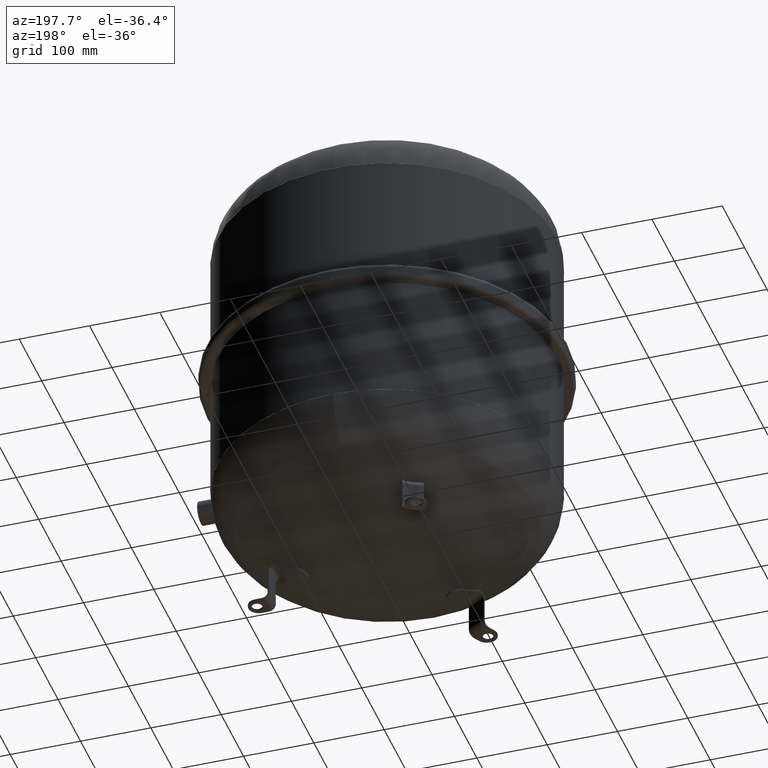
[diagram: clean part render]
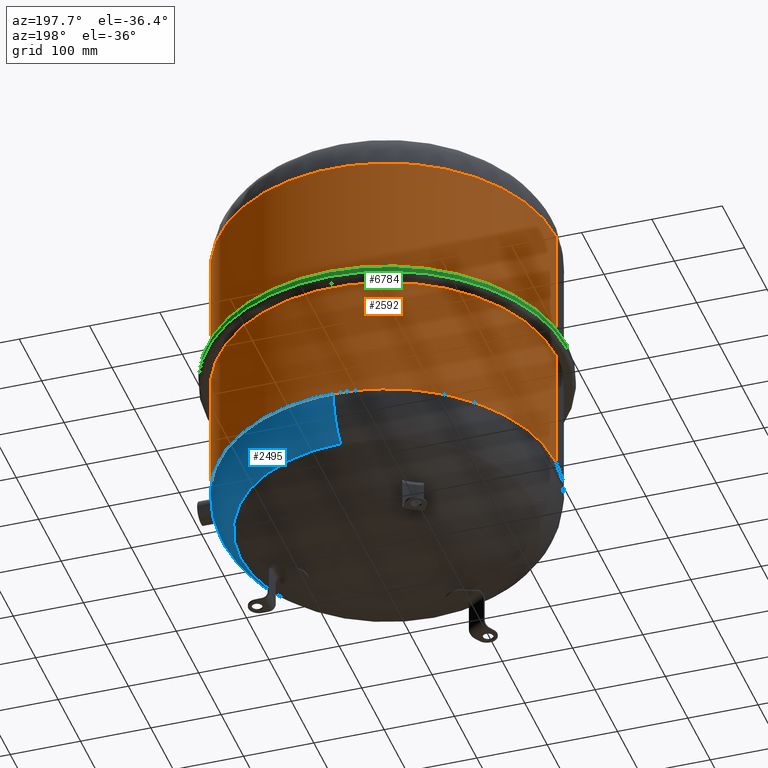
[diagram: same view with three faces highlighted in distinct colors, each labeled with its STEP entity id]
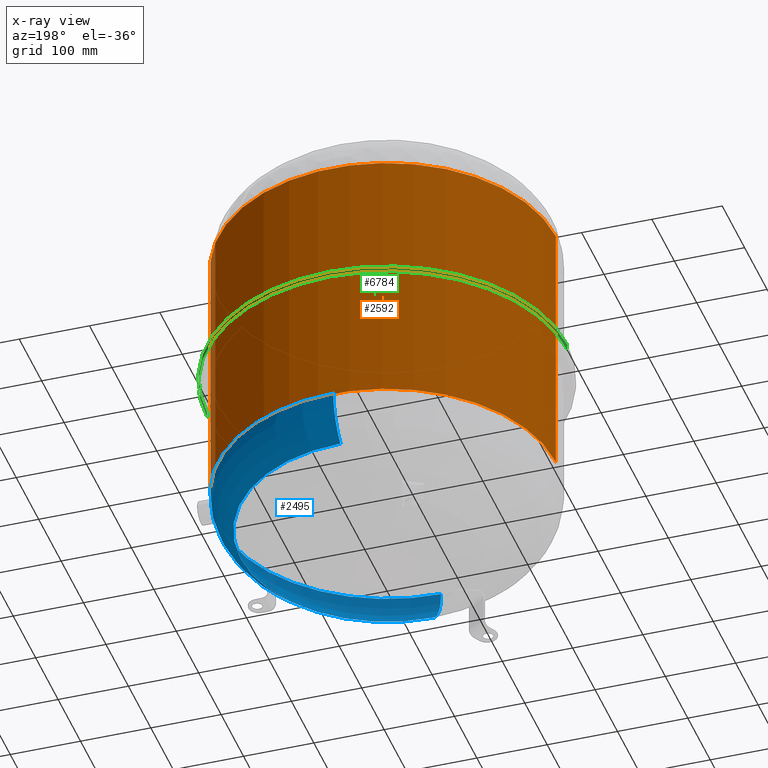
[diagram: x-ray of the same camera — body ghosted, the three highlighted faces saturated]
A machine part, auxiliary view with three faces highlighted in distinct colors.
The next image is the same camera in x-ray (body ghosted, the three faces saturated) — at least one of them is partly hidden behind the body in this view.
Their STEP definitions:

[orange] entity #2592 — the highlighted cylindrical surface (partial cylindrical patch) has radius 240 mm, axis along (0, 0, 1).
#2532=CARTESIAN_POINT('',(240.0,0.0,529.0));
#2533=VERTEX_POINT('',#2532);
#2534=CARTESIAN_POINT('',(240.0,0.0,149.0));
#2535=VERTEX_POINT('',#2534);
#2536=CARTESIAN_POINT('',(240.0,0.0,529.0));
#2537=DIRECTION('',(0.0,0.0,-1.0));
#2538=VECTOR('',#2537,380.0);
#2539=LINE('',#2536,#2538);
#2540=EDGE_CURVE('',#2533,#2535,#2539,.T.);
#2542=CARTESIAN_POINT('',(-240.0,-2.939055E-014,529.0));
#2543=VERTEX_POINT('',#2542);
#2551=CARTESIAN_POINT('',(-240.0,-2.939055E-014,149.0));
#2552=VERTEX_POINT('',#2551);
#2553=CARTESIAN_POINT('',(-240.0,-2.939055E-014,529.0));
#2554=DIRECTION('',(0.0,0.0,-1.0));
#2555=VECTOR('',#2554,380.0);
#2556=LINE('',#2553,#2555);
#2557=EDGE_CURVE('',#2543,#2552,#2556,.T.);
#2569=CARTESIAN_POINT('',(0.0,0.0,339.0));
#2570=DIRECTION('',(0.0,0.0,1.0));
#2571=DIRECTION('',(1.0,0.0,0.0));
#2572=AXIS2_PLACEMENT_3D('',#2569,#2570,#2571);
#2573=CYLINDRICAL_SURFACE('',#2572,240.0);
#2574=ORIENTED_EDGE('',*,*,#2540,.T.);
#2575=CARTESIAN_POINT('',(0.0,0.0,149.0));
#2576=DIRECTION('',(0.0,0.0,-1.0));
#2577=DIRECTION('',(1.0,0.0,0.0));
#2578=AXIS2_PLACEMENT_3D('',#2575,#2576,#2577);
#2579=CIRCLE('',#2578,240.0);
#2580=EDGE_CURVE('',#2552,#2535,#2579,.T.);
#2581=ORIENTED_EDGE('',*,*,#2580,.F.);
#2582=ORIENTED_EDGE('',*,*,#2557,.F.);
#2583=CARTESIAN_POINT('',(0.0,0.0,529.0));
#2584=DIRECTION('',(0.0,0.0,1.0));
#2585=DIRECTION('',(1.0,0.0,0.0));
#2586=AXIS2_PLACEMENT_3D('',#2583,#2584,#2585);
#2587=CIRCLE('',#2586,240.0);
#2588=EDGE_CURVE('',#2533,#2543,#2587,.T.);
#2589=ORIENTED_EDGE('',*,*,#2588,.F.);
#2590=EDGE_LOOP('',(#2574,#2581,#2582,#2589));
#2591=FACE_OUTER_BOUND('',#2590,.T.);
#2592=ADVANCED_FACE('',(#2591),#2573,.T.);

[blue] entity #2495 — the highlighted toroidal blend (fillet) surface has major radius 163.5 mm and minor (blend) radius 76.5 mm.
#2345=CARTESIAN_POINT('',(240.00000000000003,5.550104E-015,148.78135670734244));
#2346=VERTEX_POINT('',#2345);
#2353=CARTESIAN_POINT('',(-2.939055E-014,240.00000000000003,148.7813567073425));
#2354=VERTEX_POINT('',#2353);
#2355=CARTESIAN_POINT('',(0.0,-2.384045E-014,148.78135670734244));
#2356=DIRECTION('',(0.0,0.0,1.0));
#2357=DIRECTION('',(-1.0,0.0,0.0));
#2358=AXIS2_PLACEMENT_3D('',#2355,#2356,#2357);
#2359=CIRCLE('',#2358,240.00000000000006);
#2360=EDGE_CURVE('',#2346,#2354,#2359,.T.);
#2377=CARTESIAN_POINT('',(0.0,-240.00000000000009,148.78135670734238));
#2378=VERTEX_POINT('',#2377);
#2379=CARTESIAN_POINT('',(0.0,-208.57297297297296,86.969730718555795));
#2380=VERTEX_POINT('',#2379);
#2381=CARTESIAN_POINT('',(0.0,-163.50000000000003,148.78135670734244));
#2382=DIRECTION('',(1.0,0.0,0.0));
#2383=DIRECTION('',(0.0,-1.0,0.0));
#2384=AXIS2_PLACEMENT_3D('',#2381,#2382,#2383);
#2385=CIRCLE('',#2384,76.5);
#2386=EDGE_CURVE('',#2378,#2380,#2385,.T.);
#2396=CARTESIAN_POINT('',(-2.554198E-014,208.57297297297296,86.96973071855588));
#2397=VERTEX_POINT('',#2396);
#2398=CARTESIAN_POINT('',(-2.002231E-014,163.49999999999997,148.7813567073425));
#2399=DIRECTION('',(-1.0,0.0,0.0));
#2400=DIRECTION('',(0.0,1.0,0.0));
#2401=AXIS2_PLACEMENT_3D('',#2398,#2399,#2400);
#2402=CIRCLE('',#2401,76.5);
#2403=EDGE_CURVE('',#2354,#2397,#2402,.T.);
#2429=CARTESIAN_POINT('',(208.57297297297296,-6.502875E-014,86.969730718555866));
#2430=VERTEX_POINT('',#2429);
#2440=CARTESIAN_POINT('',(0.0,-1.248584E-014,86.969730718555837));
#2441=DIRECTION('',(0.0,0.0,1.0));
#2442=DIRECTION('',(-1.0,0.0,0.0));
#2443=AXIS2_PLACEMENT_3D('',#2440,#2441,#2442);
#2444=CIRCLE('',#2443,208.57297297297296);
#2445=EDGE_CURVE('',#2380,#2430,#2444,.T.);
#2466=CARTESIAN_POINT('',(0.0,-1.248584E-014,86.969730718555837));
#2467=DIRECTION('',(0.0,0.0,1.0));
#2468=DIRECTION('',(-1.0,0.0,0.0));
#2469=AXIS2_PLACEMENT_3D('',#2466,#2467,#2468);
#2470=CIRCLE('',#2469,208.57297297297296);
#2471=EDGE_CURVE('',#2430,#2397,#2470,.T.);
#2476=CARTESIAN_POINT('',(0.0,-2.384045E-014,148.78135670734247));
#2477=DIRECTION('',(0.0,-1.836970E-016,1.0));
#2478=DIRECTION('',(0.0,-1.0,0.0));
#2479=AXIS2_PLACEMENT_3D('',#2476,#2477,#2478);
#2480=TOROIDAL_SURFACE('',#2479,163.5,76.5);
#2481=ORIENTED_EDGE('',*,*,#2386,.T.);
#2482=ORIENTED_EDGE('',*,*,#2445,.T.);
#2483=ORIENTED_EDGE('',*,*,#2471,.T.);
#2484=ORIENTED_EDGE('',*,*,#2403,.F.);
#2485=ORIENTED_EDGE('',*,*,#2360,.F.);
#2486=CARTESIAN_POINT('',(0.0,-2.384045E-014,148.78135670734244));
#2487=DIRECTION('',(0.0,0.0,1.0));
#2488=DIRECTION('',(-1.0,0.0,0.0));
#2489=AXIS2_PLACEMENT_3D('',#2486,#2487,#2488);
#2490=CIRCLE('',#2489,240.00000000000006);
#2491=EDGE_CURVE('',#2378,#2346,#2490,.T.);
#2492=ORIENTED_EDGE('',*,*,#2491,.F.);
#2493=EDGE_LOOP('',(#2481,#2482,#2483,#2484,#2485,#2492));
#2494=FACE_OUTER_BOUND('',#2493,.T.);
#2495=ADVANCED_FACE('',(#2494),#2480,.T.);

[green] entity #6784 — the highlighted cylindrical surface (partial cylindrical patch) has radius 256 mm, axis along (0, 0, -1).
#6562=CARTESIAN_POINT('',(0.0,256.0,335.25));
#6563=VERTEX_POINT('',#6562);
#6598=CARTESIAN_POINT('',(-256.0,2.296213E-016,335.25));
#6599=VERTEX_POINT('',#6598);
#6607=CARTESIAN_POINT('',(0.0,2.296213E-016,335.25));
#6608=DIRECTION('',(0.0,0.0,-1.0));
#6609=DIRECTION('',(-1.0,0.0,0.0));
#6610=AXIS2_PLACEMENT_3D('',#6607,#6608,#6609);
#6611=CIRCLE('',#6610,256.0);
#6612=EDGE_CURVE('',#6599,#6563,#6611,.T.);
#6622=CARTESIAN_POINT('',(-256.00000000000006,-2.296213E-016,342.75));
#6623=VERTEX_POINT('',#6622);
#6624=CARTESIAN_POINT('',(-256.0,2.296213E-016,335.25));
#6625=DIRECTION('',(0.0,0.0,1.0));
#6626=VECTOR('',#6625,7.5);
#6627=LINE('',#6624,#6626);
#6628=EDGE_CURVE('',#6599,#6623,#6627,.T.);
#6631=CARTESIAN_POINT('',(256.0,-3.112030E-014,335.25));
#6632=VERTEX_POINT('',#6631);
#6640=CARTESIAN_POINT('',(256.0,-3.157954E-014,342.75));
#6641=VERTEX_POINT('',#6640);
#6642=CARTESIAN_POINT('',(256.0,-3.112030E-014,335.25));
#6643=DIRECTION('',(0.0,0.0,1.0));
#6644=VECTOR('',#6643,7.5);
#6645=LINE('',#6642,#6644);
#6646=EDGE_CURVE('',#6632,#6641,#6645,.T.);
#6672=CARTESIAN_POINT('',(0.0,256.00000000000006,342.75));
#6673=VERTEX_POINT('',#6672);
#6683=CARTESIAN_POINT('',(0.0,-2.296213E-016,342.75));
#6684=DIRECTION('',(0.0,0.0,-1.0));
#6685=DIRECTION('',(-1.0,0.0,0.0));
#6686=AXIS2_PLACEMENT_3D('',#6683,#6684,#6685);
#6687=CIRCLE('',#6686,256.00000000000006);
#6688=EDGE_CURVE('',#6623,#6673,#6687,.T.);
#6755=CARTESIAN_POINT('',(0.0,-2.296213E-016,342.75));
#6756=DIRECTION('',(0.0,0.0,-1.0));
#6757=DIRECTION('',(-1.0,0.0,0.0));
#6758=AXIS2_PLACEMENT_3D('',#6755,#6756,#6757);
#6759=CIRCLE('',#6758,256.00000000000006);
#6760=EDGE_CURVE('',#6673,#6641,#6759,.T.);
#6765=CARTESIAN_POINT('',(0.0,0.0,339.0));
#6766=DIRECTION('',(0.0,6.123234E-017,-1.0));
#6767=DIRECTION('',(-1.0,0.0,0.0));
#6768=AXIS2_PLACEMENT_3D('',#6765,#6766,#6767);
#6769=CYLINDRICAL_SURFACE('',#6768,256.0);
#6770=ORIENTED_EDGE('',*,*,#6628,.T.);
#6771=ORIENTED_EDGE('',*,*,#6688,.T.);
#6772=ORIENTED_EDGE('',*,*,#6760,.T.);
#6773=ORIENTED_EDGE('',*,*,#6646,.F.);
#6774=CARTESIAN_POINT('',(0.0,2.296213E-016,335.25));
#6775=DIRECTION('',(0.0,0.0,-1.0));
#6776=DIRECTION('',(-1.0,0.0,0.0));
#6777=AXIS2_PLACEMENT_3D('',#6774,#6775,#6776);
#6778=CIRCLE('',#6777,256.0);
#6779=EDGE_CURVE('',#6563,#6632,#6778,.T.);
#6780=ORIENTED_EDGE('',*,*,#6779,.F.);
#6781=ORIENTED_EDGE('',*,*,#6612,.F.);
#6782=EDGE_LOOP('',(#6770,#6771,#6772,#6773,#6780,#6781));
#6783=FACE_OUTER_BOUND('',#6782,.T.);
#6784=ADVANCED_FACE('',(#6783),#6769,.T.);